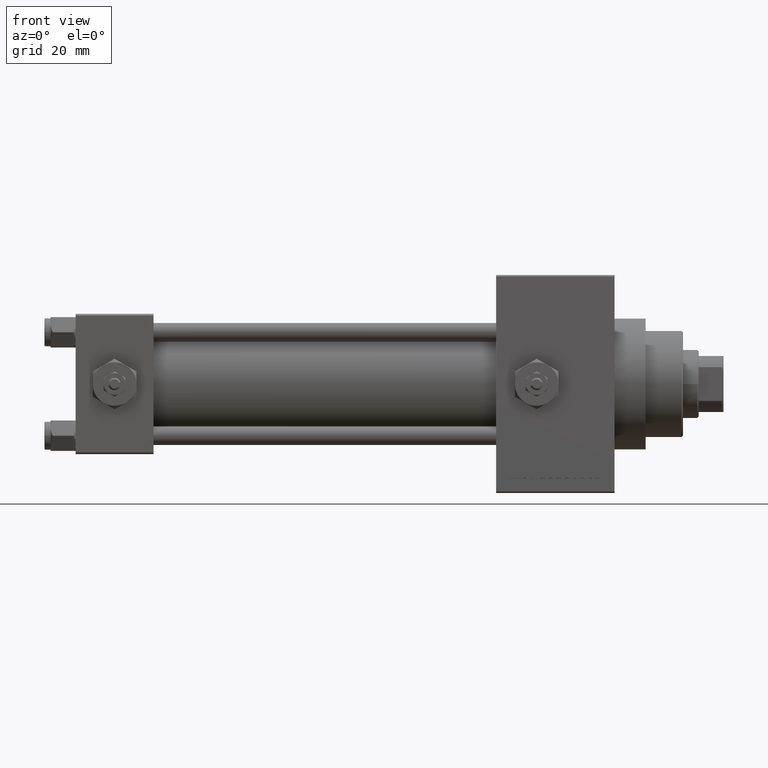
[diagram: clean part render]
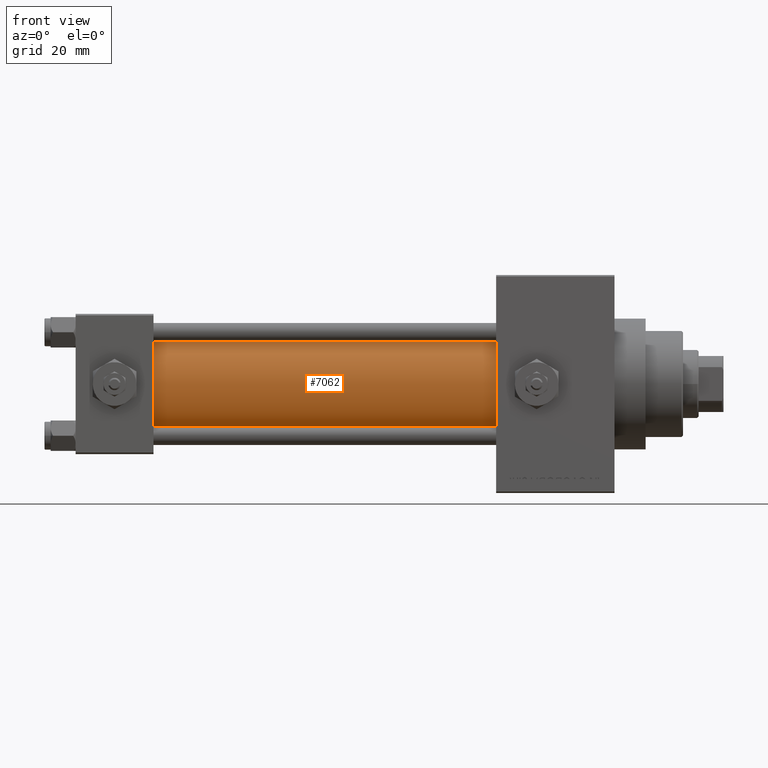
[diagram: same view with one face highlighted and labeled with its STEP entity id]
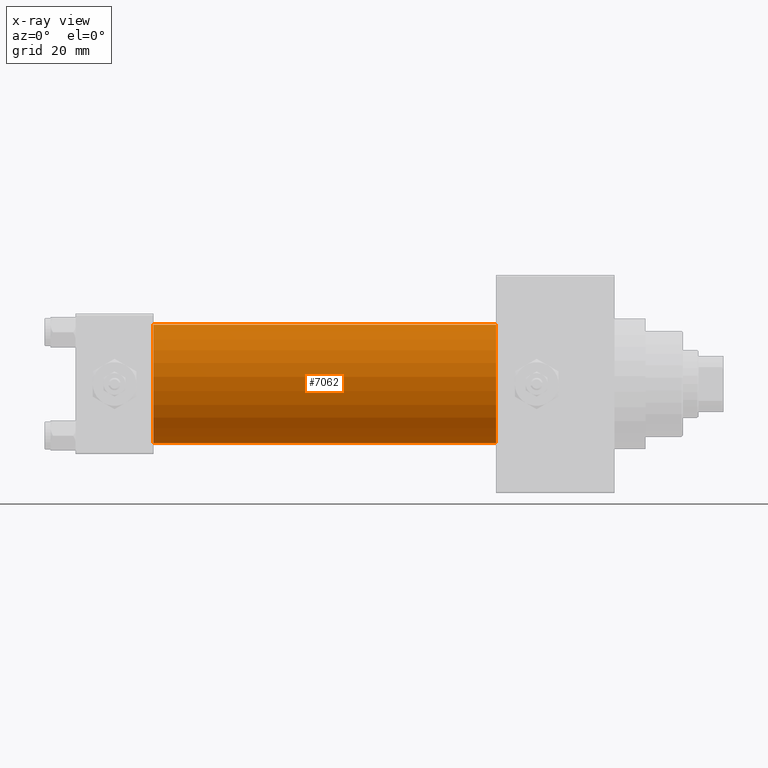
[diagram: x-ray of the same camera — body ghosted, the highlighted face saturated]
A machine part, front view. The second image highlights one B-rep face of the part: STEP entity #7062.
The next image is the same camera in x-ray: the body ghosted, the highlighted face saturated — about 0% of this face is hidden behind the body in this view.
In plain terms, the highlighted cylindrical surface (partial cylindrical patch) has radius 19 mm, axis along (-1, -0, -0).
Its self-contained STEP definition (entity closure, byte-faithful):
#839 = EDGE_CURVE ( 'NONE', #30109, #42118, #27003, .T. ) ;
#2847 = CARTESIAN_POINT ( 'NONE',  ( 135.0000000000000000, -2.602085213965210642E-15, 0.000000000000000000 ) ) ;
#5858 = EDGE_LOOP ( 'NONE', ( #11192, #44243, #16663, #40808 ) ) ;
#6593 = AXIS2_PLACEMENT_3D ( 'NONE', #2847, #10300, #41334 ) ;
#7062 = ADVANCED_FACE ( 'NONE', ( #37364 ), #33382, .T. ) ;
#7989 = AXIS2_PLACEMENT_3D ( 'NONE', #36216, #17087, #21048 ) ;
#8596 = CARTESIAN_POINT ( 'NONE',  ( 135.0000000000000000, -2.602085213965210642E-15, 19.00000000000000000 ) ) ;
#10285 = CARTESIAN_POINT ( 'NONE',  ( 135.0000000000000000, -2.752562955852396712E-16, -19.00000000000000000 ) ) ;
#10300 = DIRECTION ( 'NONE',  ( -1.000000000000000000, -0.000000000000000000, -0.000000000000000000 ) ) ;
#10521 = DIRECTION ( 'NONE',  ( 1.000000000000000000, -0.000000000000000000, 0.000000000000000000 ) ) ;
#11192 = ORIENTED_EDGE ( 'NONE', *, *, #19694, .F. ) ;
#15347 = CARTESIAN_POINT ( 'NONE',  ( 24.99999999999999289, -2.752562955852396712E-16, -19.00000000000000000 ) ) ;
#16663 = ORIENTED_EDGE ( 'NONE', *, *, #22263, .T. ) ;
#17087 = DIRECTION ( 'NONE',  ( 1.000000000000000000, 0.000000000000000000, 0.000000000000000000 ) ) ;
#18197 = DIRECTION ( 'NONE',  ( 0.000000000000000000, 0.000000000000000000, 1.000000000000000000 ) ) ;
#18653 = CARTESIAN_POINT ( 'NONE',  ( 135.0000000000000000, -2.602085213965210642E-15, 19.00000000000000000 ) ) ;
#19694 = EDGE_CURVE ( 'NONE', #42118, #24298, #25396, .T. ) ;
#20267 = VERTEX_POINT ( 'NONE', #28778 ) ;
#20402 = VECTOR ( 'NONE', #29147, 1000.000000000000000 ) ;
#21048 = DIRECTION ( 'NONE',  ( 0.000000000000000000, 0.000000000000000000, -1.000000000000000000 ) ) ;
#22263 = EDGE_CURVE ( 'NONE', #30109, #20267, #33586, .T. ) ;
#22876 = DIRECTION ( 'NONE',  ( -1.000000000000000000, -0.000000000000000000, -0.000000000000000000 ) ) ;
#24298 = VERTEX_POINT ( 'NONE', #15347 ) ;
#25396 = LINE ( 'NONE', #10285, #20402 ) ;
#27003 = CIRCLE ( 'NONE', #7989, 19.00000000000000000 ) ;
#28778 = CARTESIAN_POINT ( 'NONE',  ( 24.99999999999999289, -2.602085213965210642E-15, 19.00000000000000000 ) ) ;
#28960 = EDGE_CURVE ( 'NONE', #20267, #24298, #30483, .T. ) ;
#29147 = DIRECTION ( 'NONE',  ( -1.000000000000000000, -0.000000000000000000, -0.000000000000000000 ) ) ;
#30109 = VERTEX_POINT ( 'NONE', #8596 ) ;
#30483 = CIRCLE ( 'NONE', #35254, 19.00000000000000000 ) ;
#33382 = CYLINDRICAL_SURFACE ( 'NONE', #6593, 19.00000000000000000 ) ;
#33586 = LINE ( 'NONE', #18653, #44699 ) ;
#35254 = AXIS2_PLACEMENT_3D ( 'NONE', #45293, #10521, #18197 ) ;
#36216 = CARTESIAN_POINT ( 'NONE',  ( 135.0000000000000000, -2.602085213965210642E-15, 0.000000000000000000 ) ) ;
#37364 = FACE_OUTER_BOUND ( 'NONE', #5858, .T. ) ;
#39838 = CARTESIAN_POINT ( 'NONE',  ( 135.0000000000000000, -2.752562955852396712E-16, -19.00000000000000000 ) ) ;
#40808 = ORIENTED_EDGE ( 'NONE', *, *, #28960, .T. ) ;
#41334 = DIRECTION ( 'NONE',  ( 0.000000000000000000, 0.000000000000000000, 1.000000000000000000 ) ) ;
#42118 = VERTEX_POINT ( 'NONE', #39838 ) ;
#44243 = ORIENTED_EDGE ( 'NONE', *, *, #839, .F. ) ;
#44699 = VECTOR ( 'NONE', #22876, 1000.000000000000000 ) ;
#45293 = CARTESIAN_POINT ( 'NONE',  ( 24.99999999999999289, -2.602085213965210642E-15, 0.000000000000000000 ) ) ;